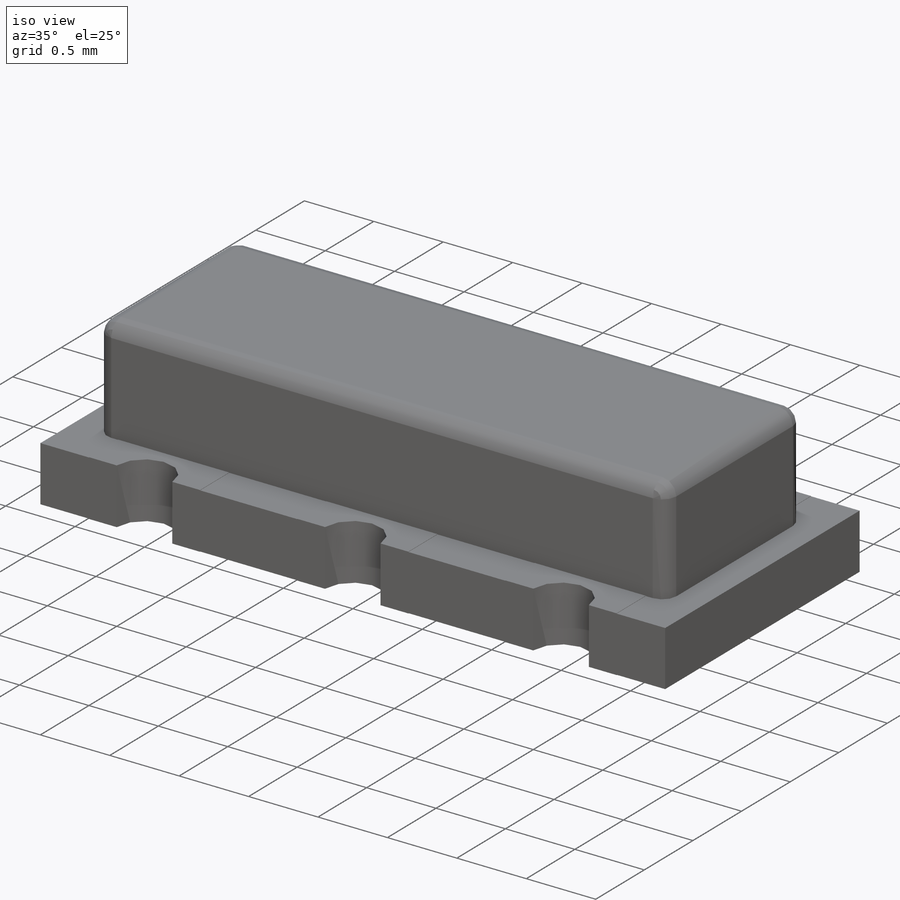
[diagram: iso view]
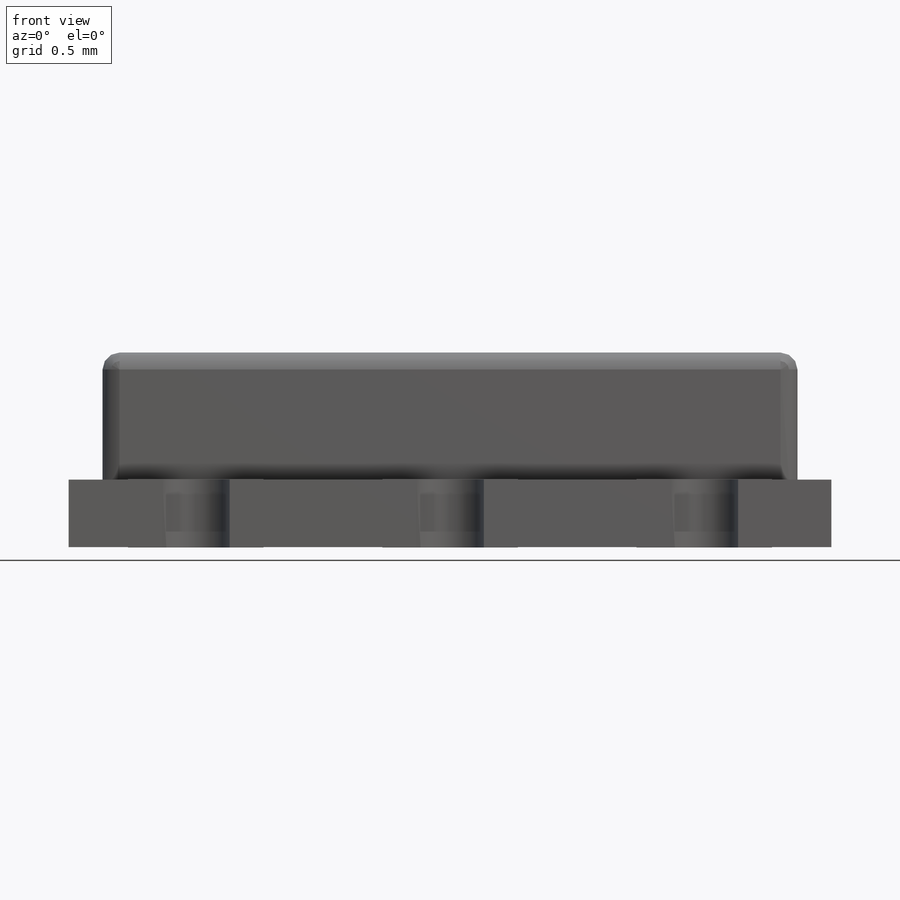
[diagram: front view]
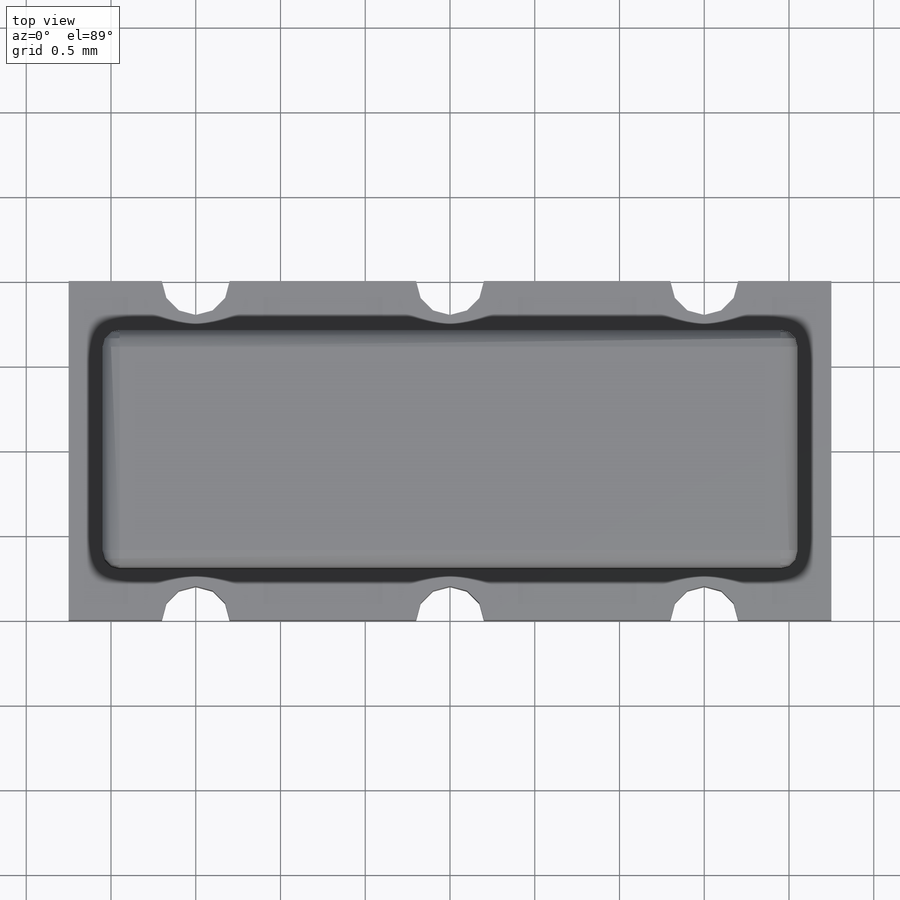
[diagram: top view]
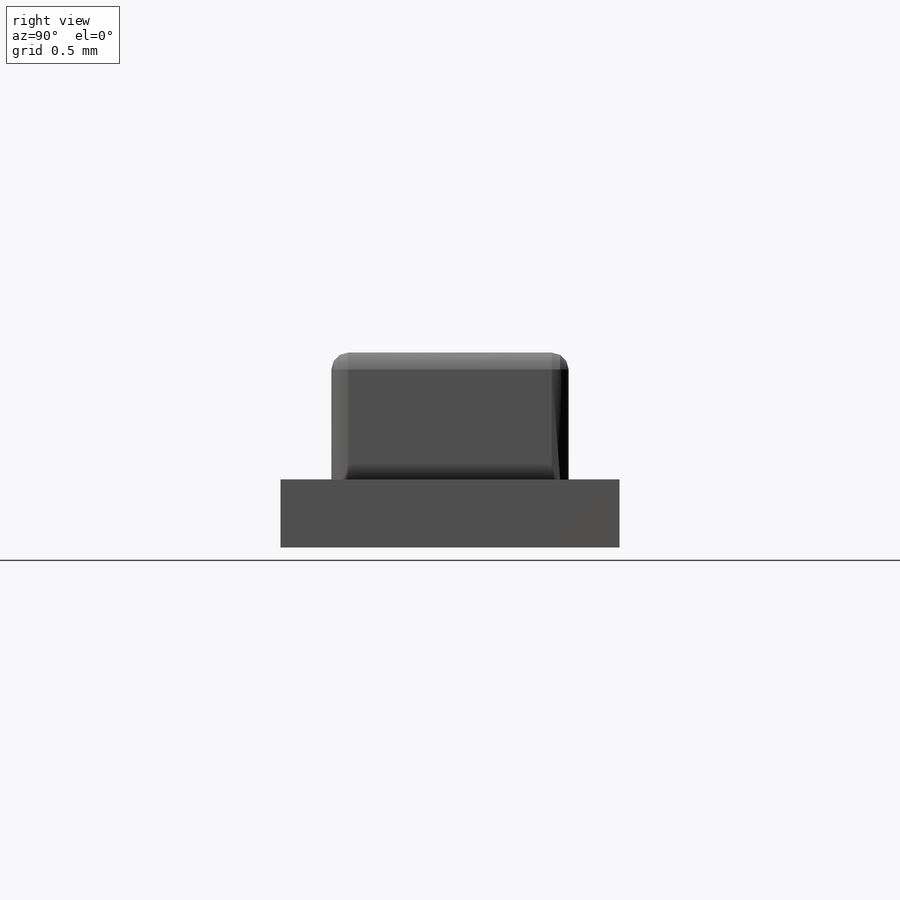
[diagram: right view]
SOLIDWORKS PART (.sldprt)
format: sldprt  version: not decoded by parser v0  size: 368,640 bytes
history: native  units: mm
features: sketch x4, extrude x4, material x1, fillet x1 (+11 scaffold rows collapsed)
feature tree (21):
  scaffold x11  (default folders/planes/origin — collapsed)
  material  "Material <not specified>"
  sketch  "Sketch1"  dims[D1=2.0mm D2=4.5mm D3=1.5mm D4=1.5mm D5=0.4mm]
  extrude  "Extrude1"  Depth=0.398mm
  sketch  "Sketch2"  dims[c1.D1=0.3mm c1.D2=0.8mm c1.D3=1.5mm c1.D4=1.5mm c2.D3=1.1mm c2.D4=0.8mm]
  extrude  "Extrude2"  [1 undecoded]
  sketch  "Sketch3"  dims[c1.D6=0.2mm c1.D1=0.3mm c1.D2=0.8mm c1.D3=1.5mm c1.D4=1.5mm c2.D3=1.1mm c2.D4=0.8mm c3.D3=0.3mm c3.D5=1.5mm c3.D7=0.8mm c3.D2=1.1mm c3.D4=0.8mm]
  extrude  "Extrude3"  Depth=0.002mm
  sketch  "Sketch4"  dims[D1=4.1mm]
  extrude  "Extrude4"  Depth=0.75mm
  fillet  "Fillet1"  Radius=0.1mm
decode coverage: 8 of 9 modeling features carry decoded parameters
note: 1 parameter value undecoded
note: suppression state not decoded; provenance and decode notes live in map.json
